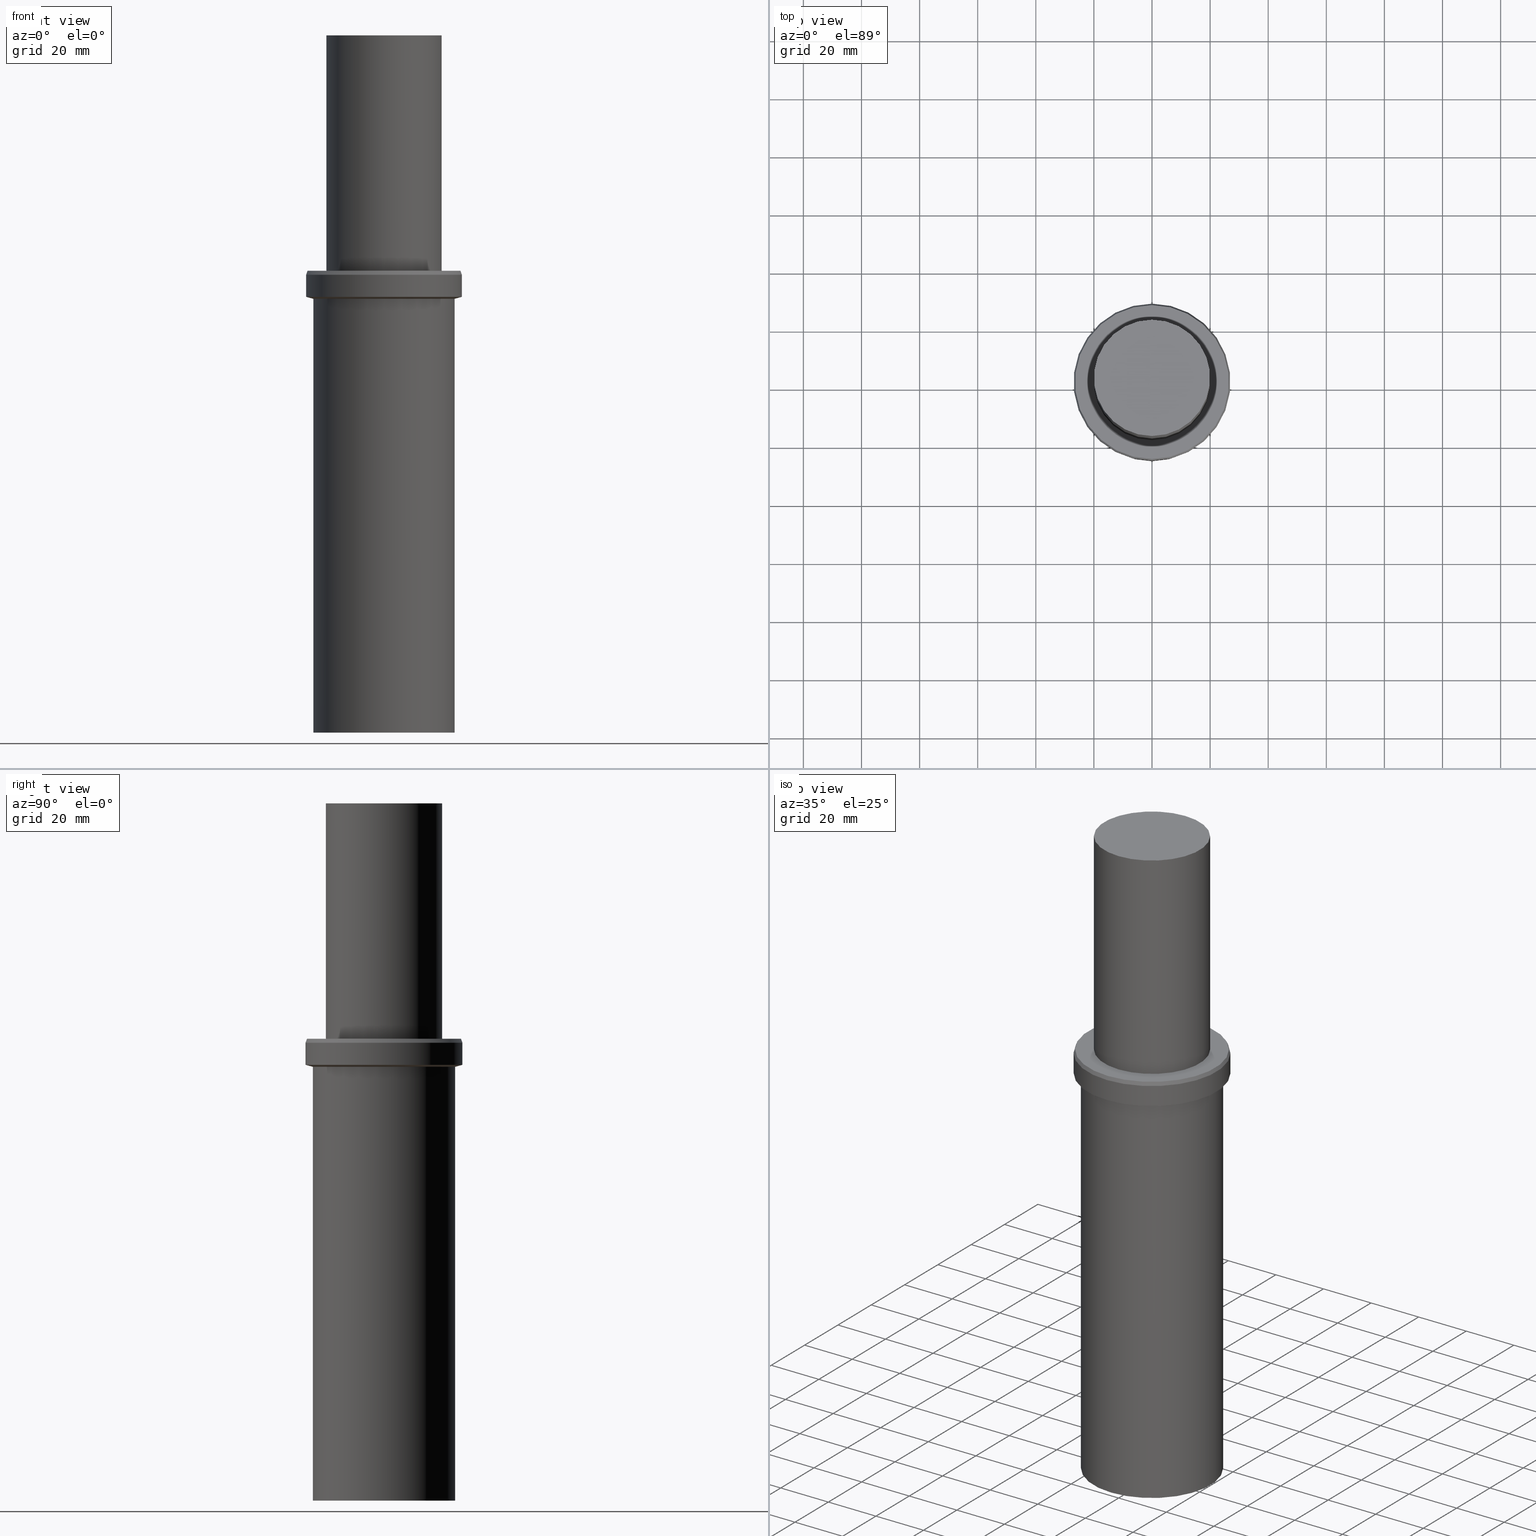
[diagram: canonical four-view strip — front | top / right | iso, engineering-drawing reading convention]
A machine part, canonical four-view strip (front | top / right | iso — engineering-drawing reading convention). The complete STEP part file that produces these views, byte-faithful:
ISO-10303-21;
HEADER;
FILE_DESCRIPTION((''),'1');
FILE_NAME('T:/21_DXF\X2\30C730FC30BF4F5C621057FA6E96\X0\/MGT36-M33-65.stp','2017-03-22T08:49:41',(''),(''),'Spatial Interop R21 SP3','Kubotek KeyCreator 2011 V10.0.2 (22737)',' ');
FILE_SCHEMA(('automotive_design'));
ENDSEC;
DATA;
#1=MECHANICAL_DESIGN_GEOMETRIC_PRESENTATION_REPRESENTATION(' ',(#10,#11,#12,#13,#14,#15,#16,#17,#18,#19,#20,#21,#22,#23,#24,#25),#6);
#2=PRODUCT_DEFINITION_CONTEXT('',#26,'design');
#3=APPLICATION_PROTOCOL_DEFINITION('INTERNATIONAL STANDARD','automotive_design',1994,#26);
#4=PRODUCT_CATEGORY_RELATIONSHIP('NONE','NONE',#27,#28);
#5=SHAPE_DEFINITION_REPRESENTATION(#29,#30);
#6= (GEOMETRIC_REPRESENTATION_CONTEXT(3)GLOBAL_UNCERTAINTY_ASSIGNED_CONTEXT((#33))GLOBAL_UNIT_ASSIGNED_CONTEXT((#35,#36,#37))REPRESENTATION_CONTEXT('NONE','WORKSPACE'));
#10=STYLED_ITEM('',(#39,#40),#41);
#11=STYLED_ITEM('',(#42,#43),#44);
#12=STYLED_ITEM('',(#45),#46);
#13=STYLED_ITEM('',(#47,#48),#49);
#14=STYLED_ITEM('',(#50),#51);
#15=STYLED_ITEM('',(#52,#53),#54);
#16=STYLED_ITEM('',(#55,#56),#57);
#17=STYLED_ITEM('',(#58,#59),#60);
#18=STYLED_ITEM('',(#61),#62);
#19=STYLED_ITEM('',(#63),#64);
#20=STYLED_ITEM('',(#65),#66);
#21=STYLED_ITEM('',(#67,#68),#69);
#22=STYLED_ITEM('',(#70),#71);
#23=STYLED_ITEM('',(#72),#73);
#24=STYLED_ITEM('',(#74,#75),#76);
#25=STYLED_ITEM('',(#77,#78),#79);
#26=APPLICATION_CONTEXT(' ');
#27=PRODUCT_CATEGORY('part','NONE');
#28=PRODUCT_RELATED_PRODUCT_CATEGORY('detail',' ',(#80));
#29=PRODUCT_DEFINITION_SHAPE('NONE','NONE',#81);
#30=ADVANCED_BREP_SHAPE_REPRESENTATION('240[2]',(#69,#82),#6);
#33=UNCERTAINTY_MEASURE_WITH_UNIT(LENGTH_MEASURE(1.0E-006),#35,'','');
#35= (CONVERSION_BASED_UNIT('MILLIMETRE',#85)LENGTH_UNIT()NAMED_UNIT(#88));
#36= (NAMED_UNIT(#90)PLANE_ANGLE_UNIT()SI_UNIT($,.RADIAN.));
#37= (NAMED_UNIT(#90)SOLID_ANGLE_UNIT()SI_UNIT($,.STERADIAN.));
#39=PRESENTATION_STYLE_ASSIGNMENT((#96));
#40=PRESENTATION_STYLE_ASSIGNMENT((#97));
#41=ADVANCED_FACE('240[2]',(#98,#99),#100,.T.);
#42=PRESENTATION_STYLE_ASSIGNMENT((#101));
#43=PRESENTATION_STYLE_ASSIGNMENT((#102));
#44=ADVANCED_FACE('240[2]',(#103,#104),#105,.T.);
#45=PRESENTATION_STYLE_ASSIGNMENT((#106));
#46=EDGE_CURVE('240[2]',#107,#107,#108,.T.);
#47=PRESENTATION_STYLE_ASSIGNMENT((#109));
#48=PRESENTATION_STYLE_ASSIGNMENT((#110));
#49=ADVANCED_FACE('240[2]',(#111,#112),#113,.T.);
#50=PRESENTATION_STYLE_ASSIGNMENT((#114));
#51=EDGE_CURVE('240[2]',#115,#115,#116,.T.);
#52=PRESENTATION_STYLE_ASSIGNMENT((#117));
#53=PRESENTATION_STYLE_ASSIGNMENT((#118));
#54=ADVANCED_FACE('240[2]',(#119,#120),#121,.T.);
#55=PRESENTATION_STYLE_ASSIGNMENT((#122));
#56=PRESENTATION_STYLE_ASSIGNMENT((#123));
#57=ADVANCED_FACE('240[2]',(#124,#125),#126,.T.);
#58=PRESENTATION_STYLE_ASSIGNMENT((#127));
#59=PRESENTATION_STYLE_ASSIGNMENT((#128));
#60=ADVANCED_FACE('240[2]',(#129),#130,.T.);
#61=PRESENTATION_STYLE_ASSIGNMENT((#131));
#62=EDGE_CURVE('240[2]',#132,#132,#133,.T.);
#63=PRESENTATION_STYLE_ASSIGNMENT((#134));
#64=EDGE_CURVE('240[2]',#135,#135,#136,.T.);
#65=PRESENTATION_STYLE_ASSIGNMENT((#137));
#66=EDGE_CURVE('240[2]',#138,#138,#139,.T.);
#67=PRESENTATION_STYLE_ASSIGNMENT((#140));
#68=PRESENTATION_STYLE_ASSIGNMENT((#141));
#69=MANIFOLD_SOLID_BREP('240[2]',#142);
#70=PRESENTATION_STYLE_ASSIGNMENT((#143));
#71=EDGE_CURVE('240[2]',#144,#144,#145,.T.);
#72=PRESENTATION_STYLE_ASSIGNMENT((#146));
#73=EDGE_CURVE('240[2]',#147,#147,#148,.T.);
#74=PRESENTATION_STYLE_ASSIGNMENT((#149));
#75=PRESENTATION_STYLE_ASSIGNMENT((#150));
#76=ADVANCED_FACE('240[2]',(#151),#152,.T.);
#77=PRESENTATION_STYLE_ASSIGNMENT((#153));
#78=PRESENTATION_STYLE_ASSIGNMENT((#154));
#79=ADVANCED_FACE('240[2]',(#155,#156),#157,.T.);
#80=PRODUCT('240[2]','240[2]','PART-240[2]-DESC',(#158));
#81=PRODUCT_DEFINITION('NONE','NONE',#159,#2);
#82=AXIS2_PLACEMENT_3D('',#160,#161,#162);
#85=LENGTH_MEASURE_WITH_UNIT(LENGTH_MEASURE(1.0),#163);
#88=DIMENSIONAL_EXPONENTS(1.0,0.0,0.0,0.0,0.0,0.0,0.0);
#90=DIMENSIONAL_EXPONENTS(0.0,0.0,0.0,0.0,0.0,0.0,0.0);
#96=SURFACE_STYLE_USAGE(.BOTH.,#164);
#97=CURVE_STYLE('',#165,POSITIVE_LENGTH_MEASURE(1000.0),#166);
#98=FACE_BOUND('',#167,.T.);
#99=FACE_BOUND('',#168,.T.);
#100=CYLINDRICAL_SURFACE('',#169,26.9999999999677);
#101=SURFACE_STYLE_USAGE(.BOTH.,#170);
#102=CURVE_STYLE('',#171,POSITIVE_LENGTH_MEASURE(1000.0),#172);
#103=FACE_BOUND('',#173,.T.);
#104=FACE_BOUND('',#174,.T.);
#105=CONICAL_SURFACE('',#175,26.7499999999677,0.34906585039842);
#106=CURVE_STYLE('',#176,POSITIVE_LENGTH_MEASURE(1000.0),#177);
#107=VERTEX_POINT('',#178);
#108=CIRCLE('',#179,19.999999999975);
#109=SURFACE_STYLE_USAGE(.BOTH.,#180);
#110=CURVE_STYLE('',#181,POSITIVE_LENGTH_MEASURE(1000.0),#182);
#111=FACE_OUTER_BOUND('',#183,.T.);
#112=FACE_BOUND('',#184,.T.);
#113=PLANE('',#185);
#114=CURVE_STYLE('',#186,POSITIVE_LENGTH_MEASURE(1000.0),#187);
#115=VERTEX_POINT('',#188);
#116=CIRCLE('',#189,26.9999999999677);
#117=SURFACE_STYLE_USAGE(.BOTH.,#190);
#118=CURVE_STYLE('',#191,POSITIVE_LENGTH_MEASURE(1000.0),#192);
#119=FACE_BOUND('',#193,.T.);
#120=FACE_BOUND('',#194,.T.);
#121=CYLINDRICAL_SURFACE('',#195,19.999999999975);
#122=SURFACE_STYLE_USAGE(.BOTH.,#196);
#123=CURVE_STYLE('',#197,POSITIVE_LENGTH_MEASURE(1000.0),#198);
#124=FACE_BOUND('',#199,.T.);
#125=FACE_BOUND('',#200,.T.);
#126=CONICAL_SURFACE('',#201,25.7499999999823,1.3089969389957);
#127=SURFACE_STYLE_USAGE(.BOTH.,#202);
#128=CURVE_STYLE('',#203,POSITIVE_LENGTH_MEASURE(1000.0),#204);
#129=FACE_OUTER_BOUND('',#205,.T.);
#130=PLANE('',#206);
#131=CURVE_STYLE('',#207,POSITIVE_LENGTH_MEASURE(1000.0),#208);
#132=VERTEX_POINT('',#209);
#133=CIRCLE('',#210,26.9999999999677);
#134=CURVE_STYLE('',#211,POSITIVE_LENGTH_MEASURE(1000.0),#212);
#135=VERTEX_POINT('',#213);
#136=CIRCLE('',#214,26.4999999999677);
#137=CURVE_STYLE('',#215,POSITIVE_LENGTH_MEASURE(1000.0),#216);
#138=VERTEX_POINT('',#217);
#139=CIRCLE('',#218,24.4999999999889);
#140=SURFACE_STYLE_USAGE(.BOTH.,#219);
#141=CURVE_STYLE('',#220,POSITIVE_LENGTH_MEASURE(1000.0),#221);
#142=CLOSED_SHELL('',(#49,#60,#54,#44,#41,#57,#79,#76));
#143=CURVE_STYLE('',#222,POSITIVE_LENGTH_MEASURE(1000.0),#223);
#144=VERTEX_POINT('',#224);
#145=CIRCLE('',#225,24.4999999999968);
#146=CURVE_STYLE('',#226,POSITIVE_LENGTH_MEASURE(1000.0),#227);
#147=VERTEX_POINT('',#228);
#148=CIRCLE('',#229,19.999999999975);
#149=SURFACE_STYLE_USAGE(.BOTH.,#230);
#150=CURVE_STYLE('',#231,POSITIVE_LENGTH_MEASURE(1000.0),#232);
#151=FACE_OUTER_BOUND('',#233,.T.);
#152=PLANE('',#234);
#153=SURFACE_STYLE_USAGE(.BOTH.,#235);
#154=CURVE_STYLE('',#236,POSITIVE_LENGTH_MEASURE(1000.0),#237);
#155=FACE_BOUND('',#238,.T.);
#156=FACE_BOUND('',#239,.T.);
#157=CYLINDRICAL_SURFACE('',#240,24.4999999999928);
#158=PRODUCT_CONTEXT('',#26,'mechanical');
#159=PRODUCT_DEFINITION_FORMATION_WITH_SPECIFIED_SOURCE(' ','NONE',#80,.NOT_KNOWN.);
#160=CARTESIAN_POINT('',(0.0,0.0,0.0));
#161=DIRECTION('',(0.0,0.0,1.0));
#162=DIRECTION('',(1.0,0.0,0.0));
#163= (NAMED_UNIT(#88)LENGTH_UNIT()SI_UNIT(.MILLI.,.METRE.));
#164=SURFACE_SIDE_STYLE('',(#242));
#165=DRAUGHTING_PRE_DEFINED_CURVE_FONT('continuous');
#166=COLOUR_RGB('',0.0,1.0,1.0);
#167=EDGE_LOOP('',(#243));
#168=EDGE_LOOP('',(#244));
#169=AXIS2_PLACEMENT_3D('',#245,#246,#247);
#170=SURFACE_SIDE_STYLE('',(#248));
#171=DRAUGHTING_PRE_DEFINED_CURVE_FONT('continuous');
#172=COLOUR_RGB('',0.0,1.0,1.0);
#173=EDGE_LOOP('',(#249));
#174=EDGE_LOOP('',(#250));
#175=AXIS2_PLACEMENT_3D('',#251,#252,#253);
#176=DRAUGHTING_PRE_DEFINED_CURVE_FONT('continuous');
#177=COLOUR_RGB('',0.0,1.0,1.0);
#178=CARTESIAN_POINT('',(-1.46957615897684E-014,19.999999999975,240.000000000003));
#179=AXIS2_PLACEMENT_3D('',#254,#255,#256);
#180=SURFACE_SIDE_STYLE('',(#257));
#181=DRAUGHTING_PRE_DEFINED_CURVE_FONT('continuous');
#182=COLOUR_RGB('',0.0,1.0,1.0);
#183=EDGE_LOOP('',(#258));
#184=EDGE_LOOP('',(#259));
#185=AXIS2_PLACEMENT_3D('',#260,#261,#262);
#186=DRAUGHTING_PRE_DEFINED_CURVE_FONT('continuous');
#187=COLOUR_RGB('',0.0,1.0,1.0);
#188=CARTESIAN_POINT('',(-9.18485099360473E-015,26.9999999999677,149.999999999993));
#189=AXIS2_PLACEMENT_3D('',#263,#264,#265);
#190=SURFACE_SIDE_STYLE('',(#266));
#191=DRAUGHTING_PRE_DEFINED_CURVE_FONT('continuous');
#192=COLOUR_RGB('',0.0,1.0,1.0);
#193=EDGE_LOOP('',(#267));
#194=EDGE_LOOP('',(#268));
#195=AXIS2_PLACEMENT_3D('',#269,#270,#271);
#196=SURFACE_SIDE_STYLE('',(#272));
#197=DRAUGHTING_PRE_DEFINED_CURVE_FONT('continuous');
#198=COLOUR_RGB('',0.0,1.0,1.0);
#199=EDGE_LOOP('',(#273));
#200=EDGE_LOOP('',(#274));
#201=AXIS2_PLACEMENT_3D('',#275,#276,#277);
#202=SURFACE_SIDE_STYLE('',(#278));
#203=DRAUGHTING_PRE_DEFINED_CURVE_FONT('continuous');
#204=COLOUR_RGB('',0.0,1.0,1.0);
#205=EDGE_LOOP('',(#279));
#206=AXIS2_PLACEMENT_3D('',#280,#281,#282);
#207=DRAUGHTING_PRE_DEFINED_CURVE_FONT('continuous');
#208=COLOUR_RGB('',0.0,1.0,1.0);
#209=CARTESIAN_POINT('',(-9.65182481753507E-015,26.9999999999677,157.626261290276));
#210=AXIS2_PLACEMENT_3D('',#283,#284,#285);
#211=DRAUGHTING_PRE_DEFINED_CURVE_FONT('continuous');
#212=COLOUR_RGB('',0.0,1.0,1.0);
#213=CARTESIAN_POINT('',(-9.73594205322181E-015,26.4999999999677,159.000000000006));
#214=AXIS2_PLACEMENT_3D('',#286,#287,#288);
#215=DRAUGHTING_PRE_DEFINED_CURVE_FONT('continuous');
#216=COLOUR_RGB('',0.0,1.0,1.0);
#217=CARTESIAN_POINT('',(0.0,24.4999999999889,0.0));
#218=AXIS2_PLACEMENT_3D('',#289,#290,#291);
#219=SURFACE_SIDE_STYLE('',(#292));
#220=DRAUGHTING_PRE_DEFINED_CURVE_FONT('continuous');
#221=COLOUR_RGB('',0.0,1.0,1.0);
#222=DRAUGHTING_PRE_DEFINED_CURVE_FONT('continuous');
#223=COLOUR_RGB('',0.0,1.0,1.0);
#224=CARTESIAN_POINT('',(-9.14383310349959E-015,24.4999999999968,149.330127018923));
#225=AXIS2_PLACEMENT_3D('',#293,#294,#295);
#226=DRAUGHTING_PRE_DEFINED_CURVE_FONT('continuous');
#227=COLOUR_RGB('',0.0,1.0,1.0);
#228=CARTESIAN_POINT('',(-1.0287033112838E-014,19.999999999975,159.000000000006));
#229=AXIS2_PLACEMENT_3D('',#296,#297,#298);
#230=SURFACE_SIDE_STYLE('',(#299));
#231=DRAUGHTING_PRE_DEFINED_CURVE_FONT('continuous');
#232=COLOUR_RGB('',0.0,1.0,1.0);
#233=EDGE_LOOP('',(#300));
#234=AXIS2_PLACEMENT_3D('',#301,#302,#303);
#235=SURFACE_SIDE_STYLE('',(#304));
#236=DRAUGHTING_PRE_DEFINED_CURVE_FONT('continuous');
#237=COLOUR_RGB('',0.0,1.0,1.0);
#238=EDGE_LOOP('',(#305));
#239=EDGE_LOOP('',(#306));
#240=AXIS2_PLACEMENT_3D('',#307,#308,#309);
#242=SURFACE_STYLE_FILL_AREA(#310);
#243=ORIENTED_EDGE('',*,*,#62,.T.);
#244=ORIENTED_EDGE('',*,*,#51,.F.);
#245=CARTESIAN_POINT('',(-9.4183379055699E-015,-1.88366758111398E-014,153.813130645135));
#246=DIRECTION('',(-6.12323399573677E-017,-1.22464679914735E-016,1.0));
#247=DIRECTION('',(-1.23259516440783E-032,1.0,1.22464679914735E-016));
#248=SURFACE_STYLE_FILL_AREA(#311);
#249=ORIENTED_EDGE('',*,*,#64,.T.);
#250=ORIENTED_EDGE('',*,*,#62,.F.);
#251=CARTESIAN_POINT('',(-9.69388343537844E-015,-1.93877668707569E-014,158.313130645141));
#252=DIRECTION('',(6.12323399573677E-017,1.22464679914735E-016,-1.0));
#253=DIRECTION('',(-1.23259516440783E-032,1.0,1.22464679914735E-016));
#254=CARTESIAN_POINT('',(-1.46957615897684E-014,-2.93915231795368E-014,240.000000000003));
#255=DIRECTION('',(6.12323399573677E-017,1.22464679914735E-016,-1.0));
#256=DIRECTION('',(-1.23259516440783E-032,1.0,1.22464679914735E-016));
#257=SURFACE_STYLE_FILL_AREA(#312);
#258=ORIENTED_EDGE('',*,*,#64,.F.);
#259=ORIENTED_EDGE('',*,*,#73,.T.);
#260=CARTESIAN_POINT('',(-19.6836970095136,3.54289035064121,159.000000000006));
#261=DIRECTION('',(0.0,0.0,1.0));
#262=DIRECTION('',(1.0,0.0,0.0));
#263=CARTESIAN_POINT('',(-9.18485099360473E-015,-1.83697019872095E-014,149.999999999993));
#264=DIRECTION('',(6.12323399573677E-017,1.22464679914735E-016,-1.0));
#265=DIRECTION('',(-1.23259516440783E-032,1.0,1.22464679914735E-016));
#266=SURFACE_STYLE_FILL_AREA(#313);
#267=ORIENTED_EDGE('',*,*,#46,.T.);
#268=ORIENTED_EDGE('',*,*,#73,.F.);
#269=CARTESIAN_POINT('',(-1.24913973513032E-014,-2.49827947026064E-014,204.000000000003));
#270=DIRECTION('',(-6.12323399573677E-017,-1.22464679914735E-016,1.0));
#271=DIRECTION('',(-1.23259516440783E-032,1.0,1.22464679914735E-016));
#272=SURFACE_STYLE_FILL_AREA(#314);
#273=ORIENTED_EDGE('',*,*,#71,.F.);
#274=ORIENTED_EDGE('',*,*,#51,.T.);
#275=CARTESIAN_POINT('',(-9.16434204855216E-015,-1.83286840971043E-014,149.665063509458));
#276=DIRECTION('',(-6.12323399573677E-017,-1.22464679914735E-016,1.0));
#277=DIRECTION('',(-1.23259516440783E-032,1.0,1.22464679914735E-016));
#278=SURFACE_STYLE_FILL_AREA(#315);
#279=ORIENTED_EDGE('',*,*,#46,.F.);
#280=CARTESIAN_POINT('',(-1.46957615897684E-014,9.99999999998747,240.000000000003));
#281=DIRECTION('',(0.0,4.74838986160715E-014,1.0));
#282=DIRECTION('',(1.0,2.90755022256047E-030,-1.38061819989197E-043));
#283=CARTESIAN_POINT('',(-9.65182481753507E-015,-1.93036496350701E-014,157.626261290276));
#284=DIRECTION('',(6.12323399573677E-017,1.22464679914735E-016,-1.0));
#285=DIRECTION('',(-1.23259516440783E-032,1.0,1.22464679914735E-016));
#286=CARTESIAN_POINT('',(-9.73594205322181E-015,-1.94718841064436E-014,159.000000000006));
#287=DIRECTION('',(6.12323399573677E-017,1.22464679914735E-016,-1.0));
#288=DIRECTION('',(-1.23259516440783E-032,1.0,1.22464679914735E-016));
#289=CARTESIAN_POINT('',(0.0,3.5527136788005E-015,0.0));
#290=DIRECTION('',(6.12323399573676E-017,1.22464679914735E-016,-1.0));
#291=DIRECTION('',(-1.23259516440783E-032,1.0,1.22464679914735E-016));
#292=SURFACE_STYLE_FILL_AREA(#316);
#293=CARTESIAN_POINT('',(-5.59111942469909E-015,-2.00640230463994E-014,149.330127018923));
#294=DIRECTION('',(6.12323399573676E-017,1.22464679914735E-016,-1.0));
#295=DIRECTION('',(-1.45008721583713E-016,1.0,1.22464679914735E-016));
#296=CARTESIAN_POINT('',(-1.0287033112838E-014,-2.0574066225676E-014,159.000000000006));
#297=DIRECTION('',(6.12323399573677E-017,1.22464679914735E-016,-1.0));
#298=DIRECTION('',(-1.23259516440783E-032,1.0,1.22464679914735E-016));
#299=SURFACE_STYLE_FILL_AREA(#317);
#300=ORIENTED_EDGE('',*,*,#66,.T.);
#301=CARTESIAN_POINT('',(24.5000000999889,24.5000000999889,-2.8421709430404E-014));
#302=DIRECTION('',(6.12323399573678E-017,-3.59377127500785E-013,-1.0));
#303=DIRECTION('',(2.20130012429436E-029,1.0,-3.59377127500785E-013));
#304=SURFACE_STYLE_FILL_AREA(#318);
#305=ORIENTED_EDGE('',*,*,#71,.T.);
#306=ORIENTED_EDGE('',*,*,#66,.F.);
#307=CARTESIAN_POINT('',(-4.89192053958296E-015,-1.61617099250409E-014,149.330127018923));
#308=DIRECTION('',(2.29610636465513E-017,1.03329041759327E-016,-1.0));
#309=DIRECTION('',(-5.108277167375E-017,-1.0,-1.03329041759327E-016));
#310=FILL_AREA_STYLE('',(#319));
#311=FILL_AREA_STYLE('',(#320));
#312=FILL_AREA_STYLE('',(#321));
#313=FILL_AREA_STYLE('',(#322));
#314=FILL_AREA_STYLE('',(#323));
#315=FILL_AREA_STYLE('',(#324));
#316=FILL_AREA_STYLE('',(#325));
#317=FILL_AREA_STYLE('',(#326));
#318=FILL_AREA_STYLE('',(#327));
#319=FILL_AREA_STYLE_COLOUR('',#328);
#320=FILL_AREA_STYLE_COLOUR('',#329);
#321=FILL_AREA_STYLE_COLOUR('',#330);
#322=FILL_AREA_STYLE_COLOUR('',#331);
#323=FILL_AREA_STYLE_COLOUR('',#332);
#324=FILL_AREA_STYLE_COLOUR('',#333);
#325=FILL_AREA_STYLE_COLOUR('',#334);
#326=FILL_AREA_STYLE_COLOUR('',#335);
#327=FILL_AREA_STYLE_COLOUR('',#336);
#328=COLOUR_RGB('',0.0,1.0,1.0);
#329=COLOUR_RGB('',0.0,1.0,1.0);
#330=COLOUR_RGB('',0.0,1.0,1.0);
#331=COLOUR_RGB('',0.0,1.0,1.0);
#332=COLOUR_RGB('',0.0,1.0,1.0);
#333=COLOUR_RGB('',0.0,1.0,1.0);
#334=COLOUR_RGB('',0.0,1.0,1.0);
#335=COLOUR_RGB('',0.0,1.0,1.0);
#336=COLOUR_RGB('',0.0,1.0,1.0);
ENDSEC;
END-ISO-10303-21;
